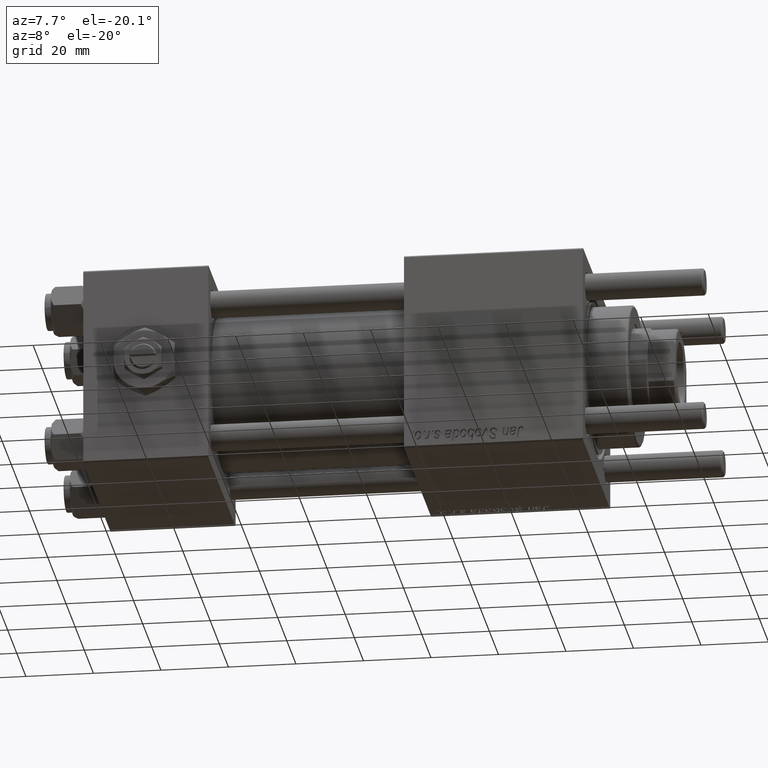
[diagram: clean part render]
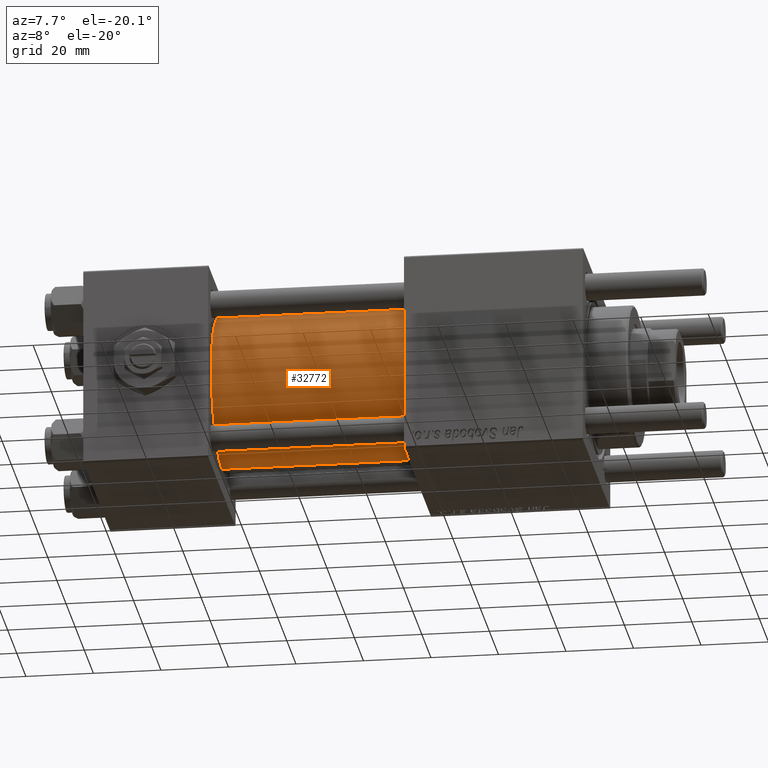
[diagram: same view with one face highlighted and labeled with its STEP entity id]
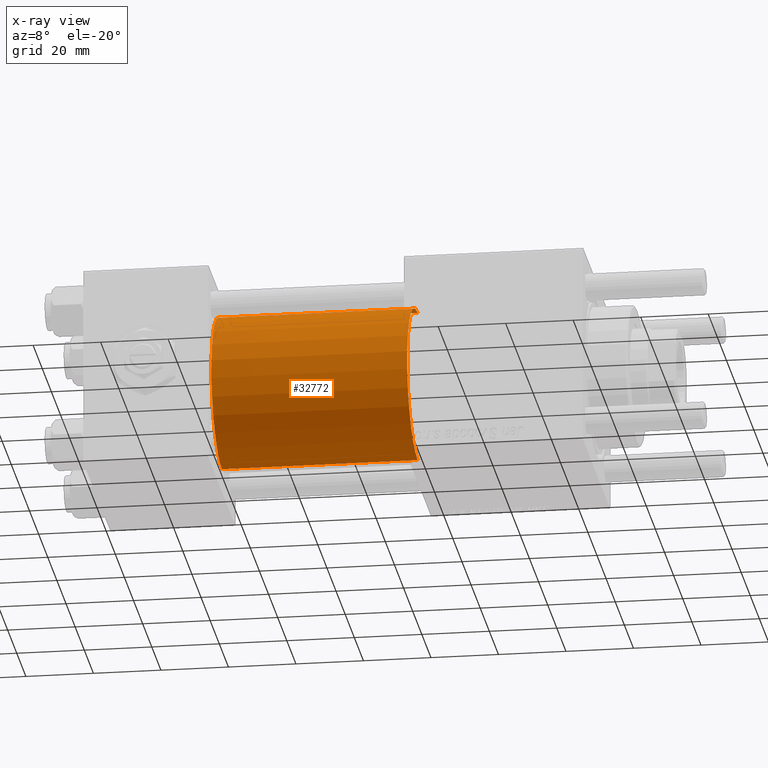
[diagram: x-ray of the same camera — body ghosted, the highlighted face saturated]
A machine part, auxiliary view. The second image highlights one B-rep face of the part: STEP entity #32772.
The next image is the same camera in x-ray: the body ghosted, the highlighted face saturated — about 0% of this face is hidden behind the body in this view.
In plain terms, the highlighted cylindrical surface (partial cylindrical patch) has radius 23 mm, axis along (-1, -0, -0).
Its self-contained STEP definition (entity closure, byte-faithful):
#1661 = ORIENTED_EDGE ( 'NONE', *, *, #31647, .T. ) ;
#4135 = CARTESIAN_POINT ( 'NONE',  ( 95.00000000000000000, 2.146024240737012665E-16, -23.00000000000000000 ) ) ;
#5444 = CARTESIAN_POINT ( 'NONE',  ( 95.00000000000000000, 2.146024240737012665E-16, -23.00000000000000000 ) ) ;
#6034 = LINE ( 'NONE', #5444, #12075 ) ;
#8318 = EDGE_CURVE ( 'NONE', #37188, #42429, #37638, .T. ) ;
#8991 = DIRECTION ( 'NONE',  ( 1.000000000000000000, 0.000000000000000000, 0.000000000000000000 ) ) ;
#11505 = VECTOR ( 'NONE', #58530, 1000.000000000000000 ) ;
#12075 = VECTOR ( 'NONE', #54908, 1000.000000000000000 ) ;
#16140 = EDGE_LOOP ( 'NONE', ( #19610, #25371, #31947, #1661 ) ) ;
#19610 = ORIENTED_EDGE ( 'NONE', *, *, #20339, .F. ) ;
#20339 = EDGE_CURVE ( 'NONE', #42429, #41596, #6034, .T. ) ;
#21014 = CARTESIAN_POINT ( 'NONE',  ( 37.00000000000000000, 2.146024240737012665E-16, -23.00000000000000000 ) ) ;
#21519 = LINE ( 'NONE', #57938, #11505 ) ;
#25371 = ORIENTED_EDGE ( 'NONE', *, *, #8318, .F. ) ;
#26230 = DIRECTION ( 'NONE',  ( 0.000000000000000000, 0.000000000000000000, 1.000000000000000000 ) ) ;
#26652 = VERTEX_POINT ( 'NONE', #26807 ) ;
#26807 = CARTESIAN_POINT ( 'NONE',  ( 37.00000000000000000, -2.602085213965210642E-15, 23.00000000000000000 ) ) ;
#27059 = CYLINDRICAL_SURFACE ( 'NONE', #41632, 23.00000000000000000 ) ;
#27353 = DIRECTION ( 'NONE',  ( 0.000000000000000000, 0.000000000000000000, 1.000000000000000000 ) ) ;
#30049 = CARTESIAN_POINT ( 'NONE',  ( 95.00000000000000000, -2.602085213965210642E-15, 23.00000000000000000 ) ) ;
#30094 = CARTESIAN_POINT ( 'NONE',  ( 37.00000000000000000, -2.602085213965210642E-15, 0.000000000000000000 ) ) ;
#30975 = DIRECTION ( 'NONE',  ( 1.000000000000000000, -0.000000000000000000, 0.000000000000000000 ) ) ;
#31647 = EDGE_CURVE ( 'NONE', #26652, #41596, #42552, .T. ) ;
#31786 = DIRECTION ( 'NONE',  ( -1.000000000000000000, -0.000000000000000000, -0.000000000000000000 ) ) ;
#31947 = ORIENTED_EDGE ( 'NONE', *, *, #36847, .T. ) ;
#32772 = ADVANCED_FACE ( 'NONE', ( #54289 ), #27059, .T. ) ;
#36528 = DIRECTION ( 'NONE',  ( 0.000000000000000000, 0.000000000000000000, -1.000000000000000000 ) ) ;
#36847 = EDGE_CURVE ( 'NONE', #37188, #26652, #21519, .T. ) ;
#37188 = VERTEX_POINT ( 'NONE', #30049 ) ;
#37638 = CIRCLE ( 'NONE', #51826, 23.00000000000000000 ) ;
#41596 = VERTEX_POINT ( 'NONE', #21014 ) ;
#41632 = AXIS2_PLACEMENT_3D ( 'NONE', #44848, #31786, #27353 ) ;
#42429 = VERTEX_POINT ( 'NONE', #4135 ) ;
#42552 = CIRCLE ( 'NONE', #50137, 23.00000000000000000 ) ;
#44848 = CARTESIAN_POINT ( 'NONE',  ( 95.00000000000000000, -2.602085213965210642E-15, 0.000000000000000000 ) ) ;
#50137 = AXIS2_PLACEMENT_3D ( 'NONE', #30094, #30975, #26230 ) ;
#51826 = AXIS2_PLACEMENT_3D ( 'NONE', #54870, #8991, #36528 ) ;
#54289 = FACE_OUTER_BOUND ( 'NONE', #16140, .T. ) ;
#54870 = CARTESIAN_POINT ( 'NONE',  ( 95.00000000000000000, -2.602085213965210642E-15, 0.000000000000000000 ) ) ;
#54908 = DIRECTION ( 'NONE',  ( -1.000000000000000000, -0.000000000000000000, -0.000000000000000000 ) ) ;
#57938 = CARTESIAN_POINT ( 'NONE',  ( 95.00000000000000000, -2.602085213965210642E-15, 23.00000000000000000 ) ) ;
#58530 = DIRECTION ( 'NONE',  ( -1.000000000000000000, -0.000000000000000000, -0.000000000000000000 ) ) ;